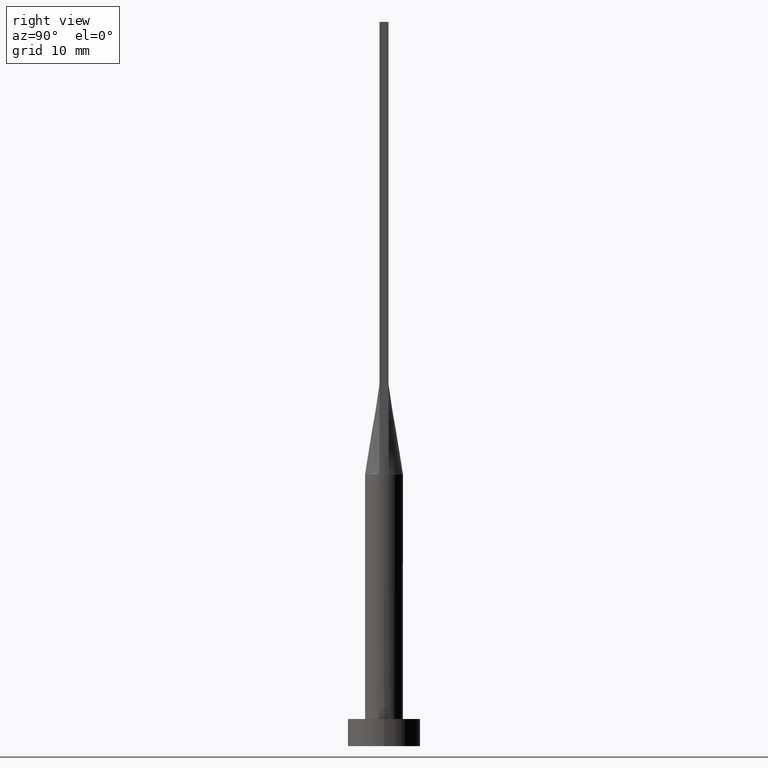
[diagram: clean part render]
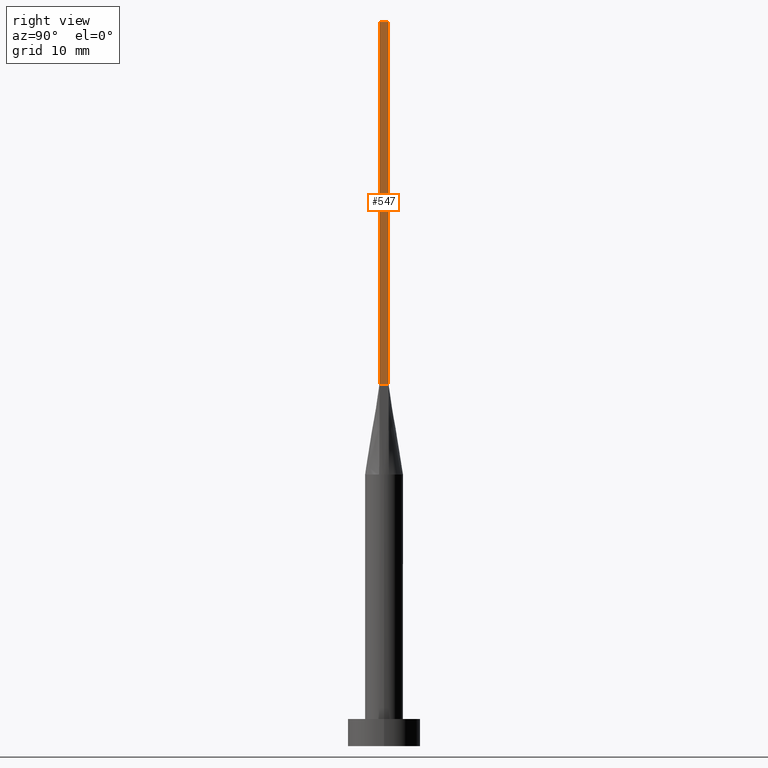
[diagram: same view with one face highlighted and labeled with its STEP entity id]
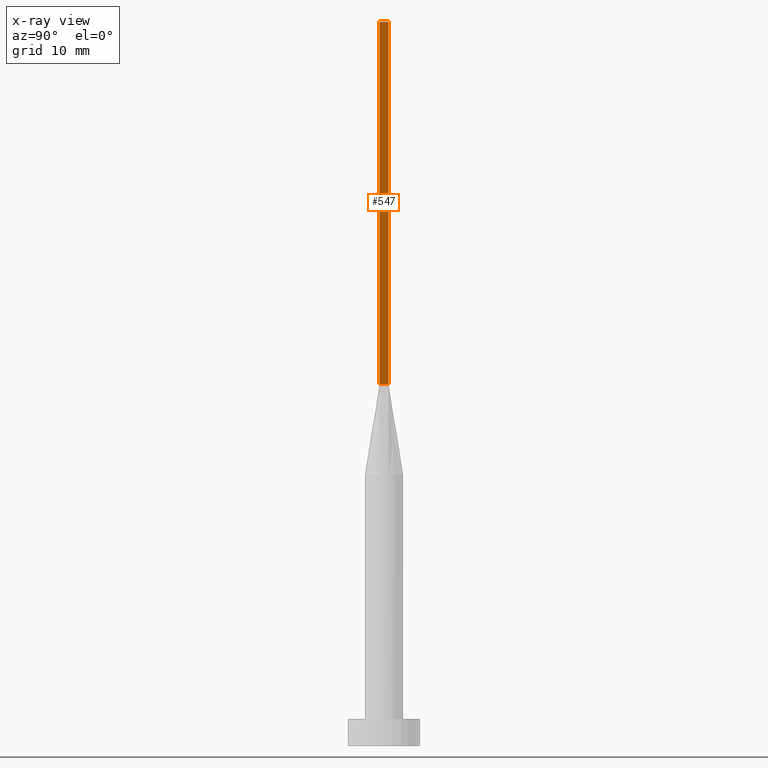
[diagram: x-ray of the same camera — body ghosted, the highlighted face saturated]
A machine part, right view. The second image highlights one B-rep face of the part: STEP entity #547.
The next image is the same camera in x-ray: the body ghosted, the highlighted face saturated — about 0% of this face is hidden behind the body in this view.
In plain terms, the highlighted planar face has unit normal (-1, 0, 0).
Its self-contained STEP definition (entity closure, byte-faithful):
#39 = VECTOR ( 'NONE', #368, 1000.000000000000000 ) ;
#48 = VERTEX_POINT ( 'NONE', #432 ) ;
#70 = ORIENTED_EDGE ( 'NONE', *, *, #316, .T. ) ;
#82 = DIRECTION ( 'NONE',  ( -6.505213034913026604E-16, -1.000000000000000000, 0.000000000000000000 ) ) ;
#92 = VECTOR ( 'NONE', #122, 1000.000000000000000 ) ;
#97 = DIRECTION ( 'NONE',  ( -2.168404344971008868E-16, 1.000000000000000000, -0.000000000000000000 ) ) ;
#118 = LINE ( 'NONE', #305, #153 ) ;
#120 = EDGE_CURVE ( 'NONE', #188, #486, #226, .T. ) ;
#121 = CARTESIAN_POINT ( 'NONE',  ( 1.899999999999999023, -0.4999999999999997780, 80.00000000000000000 ) ) ;
#122 = DIRECTION ( 'NONE',  ( 6.505213034913026604E-16, 1.000000000000000000, 0.000000000000000000 ) ) ;
#133 = AXIS2_PLACEMENT_3D ( 'NONE', #121, #265, #82 ) ;
#151 = VECTOR ( 'NONE', #97, 1000.000000000000000 ) ;
#153 = VECTOR ( 'NONE', #254, 1000.000000000000000 ) ;
#161 = EDGE_CURVE ( 'NONE', #336, #486, #196, .T. ) ;
#174 = CARTESIAN_POINT ( 'NONE',  ( 1.899999999999999689, 0.5000000000000002220, 80.00000000000000000 ) ) ;
#188 = VERTEX_POINT ( 'NONE', #479 ) ;
#196 = LINE ( 'NONE', #385, #151 ) ;
#207 = CARTESIAN_POINT ( 'NONE',  ( 1.899999999999999023, -0.4999999999999997780, 40.00000000000000000 ) ) ;
#226 = LINE ( 'NONE', #174, #39 ) ;
#254 = DIRECTION ( 'NONE',  ( -0.000000000000000000, -0.000000000000000000, -1.000000000000000000 ) ) ;
#265 = DIRECTION ( 'NONE',  ( -1.000000000000000000, 6.505213034913026604E-16, 0.000000000000000000 ) ) ;
#305 = CARTESIAN_POINT ( 'NONE',  ( 1.899999999999999023, -0.4999999999999997780, 80.00000000000000000 ) ) ;
#316 = EDGE_CURVE ( 'NONE', #48, #336, #118, .T. ) ;
#336 = VERTEX_POINT ( 'NONE', #207 ) ;
#345 = LINE ( 'NONE', #531, #92 ) ;
#350 = FACE_OUTER_BOUND ( 'NONE', #556, .T. ) ;
#367 = ORIENTED_EDGE ( 'NONE', *, *, #120, .F. ) ;
#368 = DIRECTION ( 'NONE',  ( -0.000000000000000000, -0.000000000000000000, -1.000000000000000000 ) ) ;
#385 = CARTESIAN_POINT ( 'NONE',  ( 1.899999999999999689, 0.5000000000000002220, 40.00000000000000000 ) ) ;
#386 = EDGE_CURVE ( 'NONE', #48, #188, #345, .T. ) ;
#420 = ORIENTED_EDGE ( 'NONE', *, *, #161, .T. ) ;
#432 = CARTESIAN_POINT ( 'NONE',  ( 1.899999999999999023, -0.4999999999999997780, 80.00000000000000000 ) ) ;
#444 = ORIENTED_EDGE ( 'NONE', *, *, #386, .F. ) ;
#479 = CARTESIAN_POINT ( 'NONE',  ( 1.899999999999999689, 0.5000000000000002220, 80.00000000000000000 ) ) ;
#486 = VERTEX_POINT ( 'NONE', #517 ) ;
#517 = CARTESIAN_POINT ( 'NONE',  ( 1.899999999999999689, 0.5000000000000002220, 40.00000000000000000 ) ) ;
#531 = CARTESIAN_POINT ( 'NONE',  ( 1.899999999999999023, -0.4999999999999997780, 80.00000000000000000 ) ) ;
#536 = PLANE ( 'NONE',  #133 ) ;
#547 = ADVANCED_FACE ( 'NONE', ( #350 ), #536, .F. ) ;
#556 = EDGE_LOOP ( 'NONE', ( #420, #367, #444, #70 ) ) ;